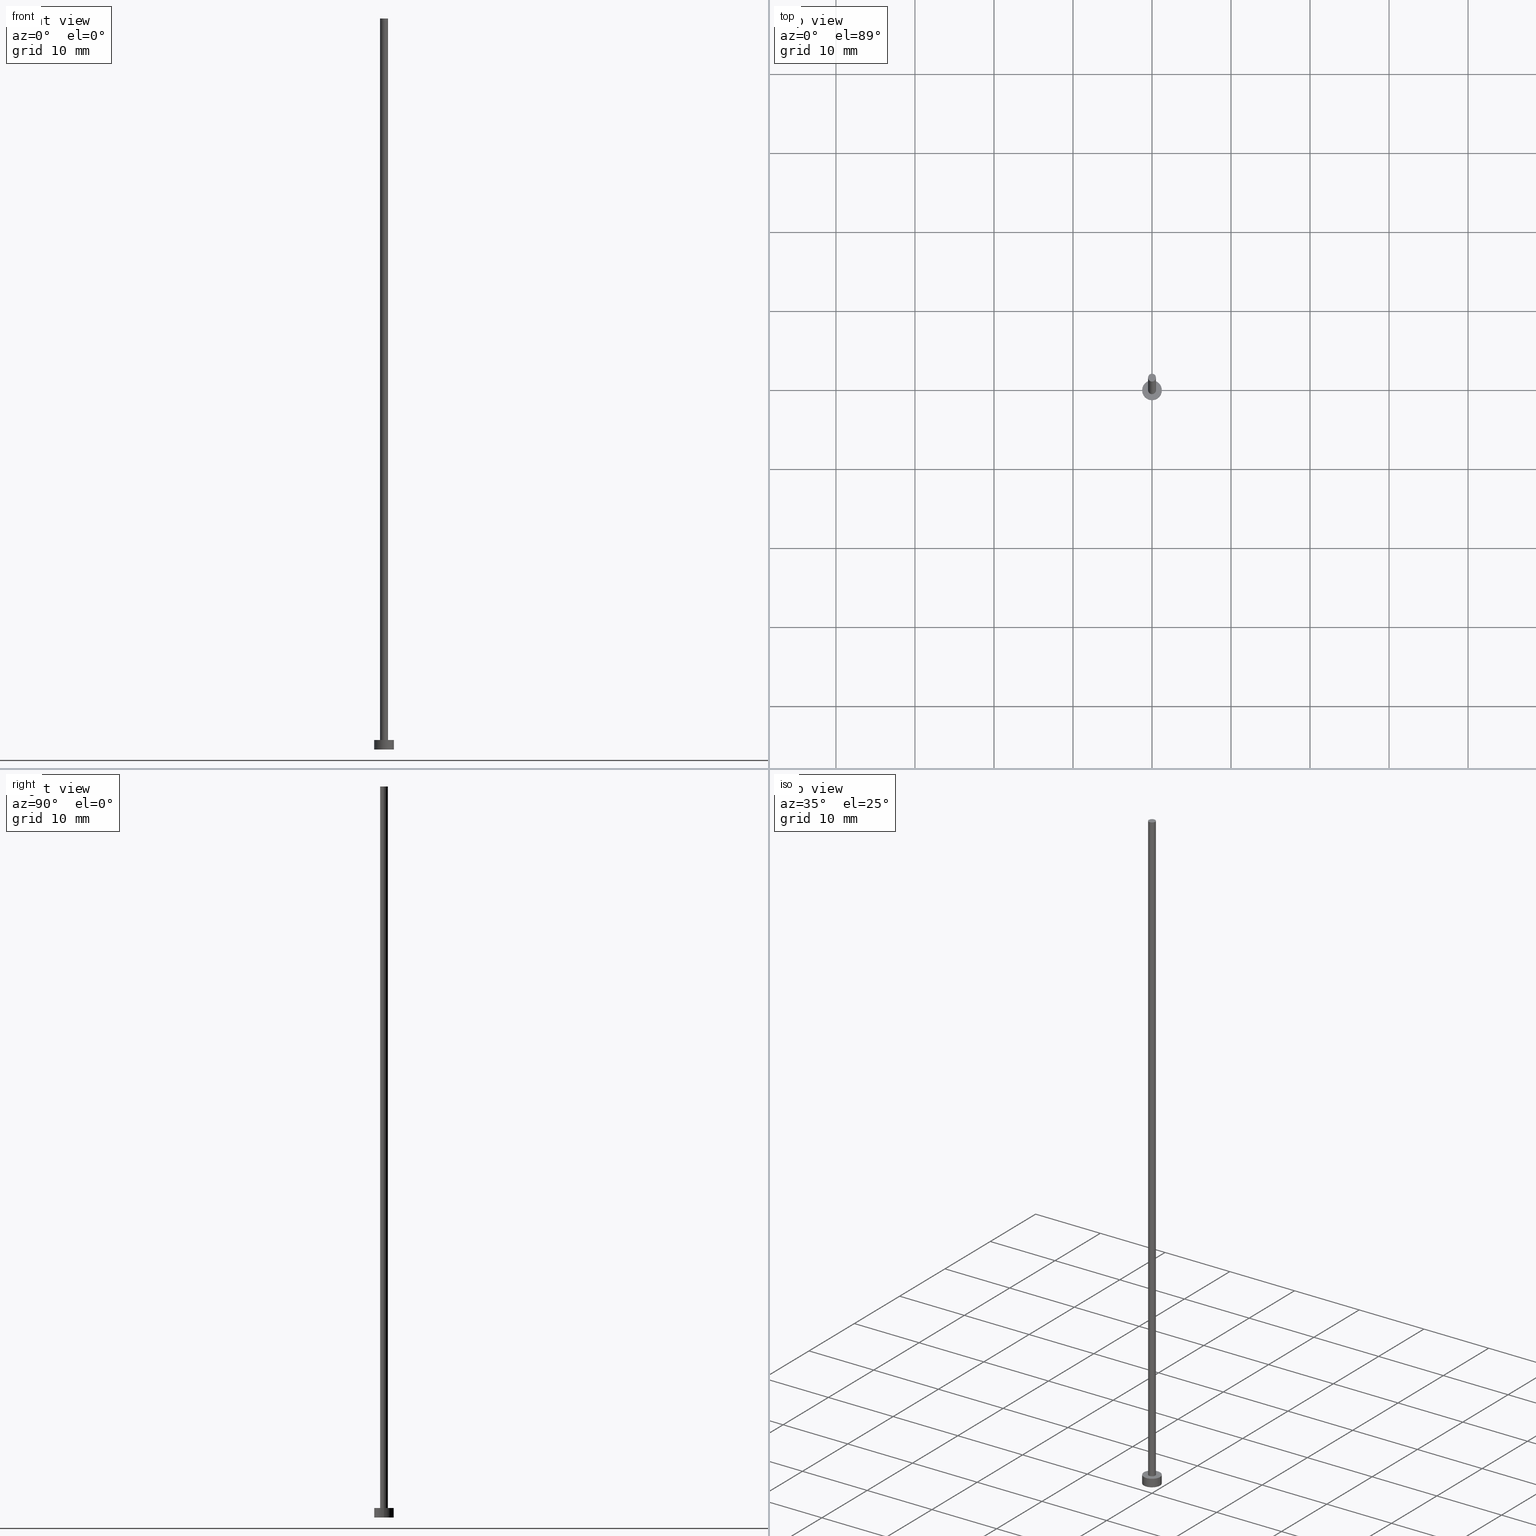
[diagram: canonical four-view strip — front | top / right | iso, engineering-drawing reading convention]
A machine part, canonical four-view strip (front | top / right | iso — engineering-drawing reading convention). The complete STEP part file that produces these views, byte-faithful:
ISO-10303-21;
HEADER;
FILE_DESCRIPTION (( 'STEP AP203' ),
    '1' );
FILE_NAME ('6671.STEP',
    '2023-04-20T06:09:05',
    ( '' ),
    ( '' ),
    'SwSTEP 2.0',
    'SolidWorks 2019',
    '' );
FILE_SCHEMA (( 'CONFIG_CONTROL_DESIGN' ));
ENDSEC;

DATA;
#1 = CIRCLE ( 'NONE', #239, 0.5000000000000000000 ) ;
#2 = DIRECTION ( 'NONE',  ( 0.000000000000000000, 0.000000000000000000, 1.000000000000000000 ) ) ;
#3 = DIRECTION ( 'NONE',  ( -0.000000000000000000, -0.000000000000000000, -1.000000000000000000 ) ) ;
#4 = EDGE_CURVE ( 'NONE', #56, #237, #158, .T. ) ;
#5 = CARTESIAN_POINT ( 'NONE',  ( 1.250000000000000000, 1.530808498934191571E-16, 1.199999999999999956 ) ) ;
#6 = PRODUCT_DEFINITION_FORMATION_WITH_SPECIFIED_SOURCE ( 'LIBOVOLN�', '', #194, .NOT_KNOWN. ) ;
#7 = DIRECTION ( 'NONE',  ( -1.000000000000000000, 0.000000000000000000, 0.000000000000000000 ) ) ;
#8 = DIRECTION ( 'NONE',  ( 0.000000000000000000, 0.000000000000000000, 1.000000000000000000 ) ) ;
#9 = PERSON_AND_ORGANIZATION_ROLE ( 'creator' ) ;
#10 = CIRCLE ( 'NONE', #236, 0.5000000000000000000 ) ;
#11 = CC_DESIGN_PERSON_AND_ORGANIZATION_ASSIGNMENT ( #93, #9, ( #46 ) ) ;
#12 = PERSON_AND_ORGANIZATION ( #65, #231 ) ;
#13 = PERSON_AND_ORGANIZATION_ROLE ( 'creator' ) ;
#14 = ADVANCED_FACE ( 'NONE', ( #25 ), #118, .T. ) ;
#15 = AXIS2_PLACEMENT_3D ( 'NONE', #54, #38, #218 ) ;
#16 = AXIS2_PLACEMENT_3D ( 'NONE', #186, #3, #42 ) ;
#17 = COORDINATED_UNIVERSAL_TIME_OFFSET ( 1, 0, .AHEAD. ) ;
#18 = ORIENTED_EDGE ( 'NONE', *, *, #50, .F. ) ;
#19 = FACE_OUTER_BOUND ( 'NONE', #137, .T. ) ;
#20 = AXIS2_PLACEMENT_3D ( 'NONE', #166, #163, #7 ) ;
#21 = APPROVAL ( #208, 'NEUR�EN�' ) ;
#22 = CC_DESIGN_SECURITY_CLASSIFICATION ( #132, ( #6 ) ) ;
#23 = ORIENTED_EDGE ( 'NONE', *, *, #144, .T. ) ;
#24 = ORIENTED_EDGE ( 'NONE', *, *, #140, .T. ) ;
#25 = FACE_OUTER_BOUND ( 'NONE', #253, .T. ) ;
#26 = DIRECTION ( 'NONE',  ( -1.000000000000000000, 0.000000000000000000, 0.000000000000000000 ) ) ;
#27 = CARTESIAN_POINT ( 'NONE',  ( 0.000000000000000000, 0.000000000000000000, 92.50000000000000000 ) ) ;
#28 = DIRECTION ( 'NONE',  ( 0.000000000000000000, 0.000000000000000000, 1.000000000000000000 ) ) ;
#29 = FACE_OUTER_BOUND ( 'NONE', #60, .T. ) ;
#30 = CARTESIAN_POINT ( 'NONE',  ( 0.000000000000000000, 0.000000000000000000, 1.199999999999999956 ) ) ;
#31 = APPROVAL_ROLE ( '' ) ;
#32 = COORDINATED_UNIVERSAL_TIME_OFFSET ( 1, 0, .AHEAD. ) ;
#33 = PERSON_AND_ORGANIZATION_ROLE ( 'design_supplier' ) ;
#34 = DIRECTION ( 'NONE',  ( 0.000000000000000000, 0.000000000000000000, 1.000000000000000000 ) ) ;
#35 = PERSON_AND_ORGANIZATION ( #65, #231 ) ;
#36 = LOCAL_TIME ( 8, 9, 5.000000000000000000, #32 ) ;
#37 = CIRCLE ( 'NONE', #159, 1.250000000000000000 ) ;
#38 = DIRECTION ( 'NONE',  ( 0.000000000000000000, 0.000000000000000000, 1.000000000000000000 ) ) ;
#39 = SHAPE_DEFINITION_REPRESENTATION ( #106, #111 ) ;
#40 = ORIENTED_EDGE ( 'NONE', *, *, #94, .F. ) ;
#41 = DIRECTION ( 'NONE',  ( 1.000000000000000000, 0.000000000000000000, 0.000000000000000000 ) ) ;
#42 = DIRECTION ( 'NONE',  ( -1.000000000000000000, 0.000000000000000000, 0.000000000000000000 ) ) ;
#43 = CARTESIAN_POINT ( 'NONE',  ( 0.000000000000000000, 0.000000000000000000, 1.199999999999999956 ) ) ;
#44 = DIRECTION ( 'NONE',  ( 0.000000000000000000, 0.000000000000000000, 1.000000000000000000 ) ) ;
#45 = DIRECTION ( 'NONE',  ( 0.000000000000000000, 0.000000000000000000, 1.000000000000000000 ) ) ;
#46 = PRODUCT_DEFINITION ( 'NEZN�M�', '', #6, #255 ) ;
#47 = CARTESIAN_POINT ( 'NONE',  ( 1.250000000000000000, 1.530808498934191571E-16, 1.199999999999999956 ) ) ;
#48 = APPROVAL_ROLE ( '' ) ;
#49 = DIRECTION ( 'NONE',  ( 1.000000000000000000, 0.000000000000000000, -0.000000000000000000 ) ) ;
#50 = EDGE_CURVE ( 'NONE', #99, #217, #1, .T. ) ;
#51 = DATE_AND_TIME ( #154, #214 ) ;
#52 = APPROVAL_STATUS ( 'not_yet_approved' ) ;
#53 = APPROVAL ( #229, 'NEUR�EN�' ) ;
#54 = CARTESIAN_POINT ( 'NONE',  ( 0.000000000000000000, 0.000000000000000000, 92.50000000000000000 ) ) ;
#55 = VERTEX_POINT ( 'NONE', #199 ) ;
#56 = VERTEX_POINT ( 'NONE', #136 ) ;
#57 = VECTOR ( 'NONE', #138, 1000.000000000000000 ) ;
#58 = APPROVAL_PERSON_ORGANIZATION ( #212, #53, #48 ) ;
#59 = DIRECTION ( 'NONE',  ( 0.000000000000000000, 0.000000000000000000, 1.000000000000000000 ) ) ;
#60 = EDGE_LOOP ( 'NONE', ( #40, #114 ) ) ;
#61 = PLANE ( 'NONE',  #184 ) ;
#62 = CARTESIAN_POINT ( 'NONE',  ( 0.5000000000000000000, 6.123233995736766036E-17, 1.199999999999999956 ) ) ;
#63 = ADVANCED_FACE ( 'NONE', ( #19 ), #96, .T. ) ;
#64 = DIRECTION ( 'NONE',  ( 1.000000000000000000, 0.000000000000000000, 0.000000000000000000 ) ) ;
#65 = PERSON ( 'NEUR�EN�', 'NEUR�EN�', 'NEUR�EN�', ('NEUR�EN�'), ('NEUR�EN�'), ('NEUR�EN�') ) ;
#66 = DIRECTION ( 'NONE',  ( 0.000000000000000000, 0.000000000000000000, 1.000000000000000000 ) ) ;
#67 = APPROVAL ( #52, 'NEUR�EN�' ) ;
#68 = DIRECTION ( 'NONE',  ( 0.000000000000000000, 0.000000000000000000, 1.000000000000000000 ) ) ;
#69 = CALENDAR_DATE ( 2023, 20, 4 ) ;
#70 = CALENDAR_DATE ( 2023, 20, 4 ) ;
#71 = DATE_TIME_ROLE ( 'classification_date' ) ;
#72 = VERTEX_POINT ( 'NONE', #125 ) ;
#73 = UNCERTAINTY_MEASURE_WITH_UNIT (LENGTH_MEASURE( 1.000000000000000082E-05 ), #190, 'distance_accuracy_value', 'NONE');
#74 = VECTOR ( 'NONE', #227, 1000.000000000000000 ) ;
#75 = MANIFOLD_SOLID_BREP ( 'P�idat vysunut�m3', #124 ) ;
#76 = ORIENTED_EDGE ( 'NONE', *, *, #140, .F. ) ;
#77 = EDGE_LOOP ( 'NONE', ( #198, #24 ) ) ;
#78 = ORIENTED_EDGE ( 'NONE', *, *, #144, .F. ) ;
#79 = CIRCLE ( 'NONE', #130, 1.250000000000000000 ) ;
#80 = LOCAL_TIME ( 8, 9, 5.000000000000000000, #17 ) ;
#81 = ORIENTED_EDGE ( 'NONE', *, *, #187, .F. ) ;
#82 = FACE_OUTER_BOUND ( 'NONE', #77, .T. ) ;
#83 = EDGE_CURVE ( 'NONE', #234, #237, #245, .T. ) ;
#84 = PLANE ( 'NONE',  #201 ) ;
#85 = AXIS2_PLACEMENT_3D ( 'NONE', #145, #66, #167 ) ;
#86 = DIRECTION ( 'NONE',  ( 0.000000000000000000, 0.000000000000000000, 1.000000000000000000 ) ) ;
#87 = DIRECTION ( 'NONE',  ( 1.000000000000000000, 0.000000000000000000, 0.000000000000000000 ) ) ;
#88 = CARTESIAN_POINT ( 'NONE',  ( 0.000000000000000000, 0.000000000000000000, 0.000000000000000000 ) ) ;
#89 = DIRECTION ( 'NONE',  ( 1.000000000000000000, 0.000000000000000000, 0.000000000000000000 ) ) ;
#90 =( NAMED_UNIT ( * ) PLANE_ANGLE_UNIT ( ) SI_UNIT ( $, .RADIAN. ) );
#91 = SECURITY_CLASSIFICATION_LEVEL ( 'unclassified' ) ;
#92 = AXIS2_PLACEMENT_3D ( 'NONE', #222, #8, #243 ) ;
#93 = PERSON_AND_ORGANIZATION ( #65, #231 ) ;
#94 = EDGE_CURVE ( 'NONE', #237, #234, #37, .T. ) ;
#95 = ORIENTED_EDGE ( 'NONE', *, *, #187, .T. ) ;
#96 = CYLINDRICAL_SURFACE ( 'NONE', #20, 0.5000000000000000000 ) ;
#97 = ORIENTED_EDGE ( 'NONE', *, *, #149, .T. ) ;
#98 = ORIENTED_EDGE ( 'NONE', *, *, #4, .T. ) ;
#99 = VERTEX_POINT ( 'NONE', #62 ) ;
#100 = CARTESIAN_POINT ( 'NONE',  ( 1.250000000000000000, 1.530808498934191571E-16, 0.000000000000000000 ) ) ;
#101 = DIRECTION ( 'NONE',  ( 1.000000000000000000, 0.000000000000000000, 0.000000000000000000 ) ) ;
#102 = LINE ( 'NONE', #5, #74 ) ;
#103 = FACE_OUTER_BOUND ( 'NONE', #215, .T. ) ;
#104 = VECTOR ( 'NONE', #205, 1000.000000000000000 ) ;
#105 = CARTESIAN_POINT ( 'NONE',  ( 0.5000000000000000000, 6.123233995736766036E-17, 92.50000000000000000 ) ) ;
#106 = PRODUCT_DEFINITION_SHAPE ( 'NONE', 'NONE',  #46 ) ;
#107 = CALENDAR_DATE ( 2023, 20, 4 ) ;
#108 = ADVANCED_FACE ( 'NONE', ( #103 ), #241, .T. ) ;
#109 = PERSON_AND_ORGANIZATION ( #65, #231 ) ;
#110 = DATE_AND_TIME ( #70, #226 ) ;
#111 = ADVANCED_BREP_SHAPE_REPRESENTATION ( '6671', ( #75, #246 ), #228 ) ;
#112 = PERSON_AND_ORGANIZATION_ROLE ( 'design_owner' ) ;
#113 = CIRCLE ( 'NONE', #192, 0.5000000000000000000 ) ;
#114 = ORIENTED_EDGE ( 'NONE', *, *, #83, .F. ) ;
#115 = EDGE_LOOP ( 'NONE', ( #160, #18 ) ) ;
#116 = ORIENTED_EDGE ( 'NONE', *, *, #149, .F. ) ;
#117 = APPLICATION_CONTEXT ( 'configuration controlled 3d designs of mechanical parts and assemblies' ) ;
#118 = PLANE ( 'NONE',  #15 ) ;
#119 = ORIENTED_EDGE ( 'NONE', *, *, #203, .T. ) ;
#120 = CC_DESIGN_APPROVAL ( #21, ( #132 ) ) ;
#121 = LINE ( 'NONE', #240, #147 ) ;
#122 = DIRECTION ( 'NONE',  ( 0.000000000000000000, 0.000000000000000000, 1.000000000000000000 ) ) ;
#123 = CYLINDRICAL_SURFACE ( 'NONE', #16, 1.250000000000000000 ) ;
#124 = CLOSED_SHELL ( 'NONE', ( #63, #157, #224, #248, #206, #108, #14 ) ) ;
#125 = CARTESIAN_POINT ( 'NONE',  ( 0.5000000000000000000, 6.123233995736766036E-17, 92.50000000000000000 ) ) ;
#126 = LOCAL_TIME ( 8, 9, 5.000000000000000000, #210 ) ;
#127 = PERSON_AND_ORGANIZATION ( #65, #231 ) ;
#128 = PERSON_AND_ORGANIZATION_ROLE ( 'classification_officer' ) ;
#129 = CC_DESIGN_PERSON_AND_ORGANIZATION_ASSIGNMENT ( #230, #13, ( #6 ) ) ;
#130 = AXIS2_PLACEMENT_3D ( 'NONE', #185, #45, #142 ) ;
#131 = PERSON_AND_ORGANIZATION ( #65, #231 ) ;
#132 = SECURITY_CLASSIFICATION ( '', '', #91 ) ;
#133 = APPLICATION_CONTEXT ( 'configuration controlled 3d designs of mechanical parts and assemblies' ) ;
#134 = AXIS2_PLACEMENT_3D ( 'NONE', #180, #68, #101 ) ;
#135 = APPROVAL_DATE_TIME ( #216, #21 ) ;
#136 = CARTESIAN_POINT ( 'NONE',  ( -1.250000000000000000, 0.000000000000000000, 1.199999999999999956 ) ) ;
#137 = EDGE_LOOP ( 'NONE', ( #116, #95, #139, #78 ) ) ;
#138 = DIRECTION ( 'NONE',  ( -0.000000000000000000, -0.000000000000000000, -1.000000000000000000 ) ) ;
#139 = ORIENTED_EDGE ( 'NONE', *, *, #50, .T. ) ;
#140 = EDGE_CURVE ( 'NONE', #162, #56, #79, .T. ) ;
#141 = CARTESIAN_POINT ( 'NONE',  ( -1.250000000000000000, 0.000000000000000000, 1.199999999999999956 ) ) ;
#142 = DIRECTION ( 'NONE',  ( 1.000000000000000000, 0.000000000000000000, 0.000000000000000000 ) ) ;
#143 = DIRECTION ( 'NONE',  ( -0.000000000000000000, -0.000000000000000000, -1.000000000000000000 ) ) ;
#144 = EDGE_CURVE ( 'NONE', #55, #217, #121, .T. ) ;
#145 = CARTESIAN_POINT ( 'NONE',  ( 0.000000000000000000, 0.000000000000000000, 92.50000000000000000 ) ) ;
#146 = DIRECTION ( 'NONE',  ( 1.000000000000000000, 0.000000000000000000, 0.000000000000000000 ) ) ;
#147 = VECTOR ( 'NONE', #207, 1000.000000000000000 ) ;
#148 = CARTESIAN_POINT ( 'NONE',  ( -1.250000000000000000, 0.000000000000000000, 0.000000000000000000 ) ) ;
#149 = EDGE_CURVE ( 'NONE', #72, #55, #165, .T. ) ;
#150 =( NAMED_UNIT ( * ) SI_UNIT ( $, .STERADIAN. ) SOLID_ANGLE_UNIT ( ) );
#151 = APPLICATION_PROTOCOL_DEFINITION ( 'international standard', 'config_control_design', 1994, #117 ) ;
#152 = CC_DESIGN_APPROVAL ( #53, ( #6 ) ) ;
#153 = CC_DESIGN_PERSON_AND_ORGANIZATION_ASSIGNMENT ( #131, #112, ( #194 ) ) ;
#154 = CALENDAR_DATE ( 2023, 20, 4 ) ;
#155 = APPROVAL_ROLE ( '' ) ;
#156 = CARTESIAN_POINT ( 'NONE',  ( 0.000000000000000000, 0.000000000000000000, 1.199999999999999956 ) ) ;
#157 = ADVANCED_FACE ( 'NONE', ( #202 ), #123, .T. ) ;
#158 = LINE ( 'NONE', #141, #57 ) ;
#159 = AXIS2_PLACEMENT_3D ( 'NONE', #223, #44, #146 ) ;
#160 = ORIENTED_EDGE ( 'NONE', *, *, #169, .F. ) ;
#161 = CC_DESIGN_DATE_AND_TIME_ASSIGNMENT ( #251, #71, ( #132 ) ) ;
#162 = VERTEX_POINT ( 'NONE', #47 ) ;
#163 = DIRECTION ( 'NONE',  ( -0.000000000000000000, -0.000000000000000000, -1.000000000000000000 ) ) ;
#164 = CARTESIAN_POINT ( 'NONE',  ( 0.000000000000000000, 0.000000000000000000, 1.199999999999999956 ) ) ;
#165 = CIRCLE ( 'NONE', #85, 0.5000000000000000000 ) ;
#166 = CARTESIAN_POINT ( 'NONE',  ( 0.000000000000000000, 0.000000000000000000, 92.50000000000000000 ) ) ;
#167 = DIRECTION ( 'NONE',  ( 1.000000000000000000, 0.000000000000000000, 0.000000000000000000 ) ) ;
#168 = LINE ( 'NONE', #105, #104 ) ;
#169 = EDGE_CURVE ( 'NONE', #217, #99, #10, .T. ) ;
#170 = AXIS2_PLACEMENT_3D ( 'NONE', #164, #143, #26 ) ;
#171 = APPROVAL_DATE_TIME ( #110, #67 ) ;
#172 = COORDINATED_UNIVERSAL_TIME_OFFSET ( 1, 0, .AHEAD. ) ;
#173 = CALENDAR_DATE ( 2023, 20, 4 ) ;
#174 = ORIENTED_EDGE ( 'NONE', *, *, #83, .T. ) ;
#175 = ORIENTED_EDGE ( 'NONE', *, *, #220, .T. ) ;
#176 = CC_DESIGN_DATE_AND_TIME_ASSIGNMENT ( #188, #209, ( #46 ) ) ;
#177 = EDGE_LOOP ( 'NONE', ( #195, #254, #98, #252 ) ) ;
#178 = APPROVAL_PERSON_ORGANIZATION ( #127, #21, #31 ) ;
#179 = CARTESIAN_POINT ( 'NONE',  ( -0.5000000000000000000, 0.000000000000000000, 1.199999999999999956 ) ) ;
#180 = CARTESIAN_POINT ( 'NONE',  ( 0.000000000000000000, 0.000000000000000000, 0.000000000000000000 ) ) ;
#181 = EDGE_CURVE ( 'NONE', #56, #162, #250, .T. ) ;
#182 = DIRECTION ( 'NONE',  ( -1.000000000000000000, 0.000000000000000000, 0.000000000000000000 ) ) ;
#183 = AXIS2_PLACEMENT_3D ( 'NONE', #238, #225, #182 ) ;
#184 = AXIS2_PLACEMENT_3D ( 'NONE', #43, #122, #49 ) ;
#185 = CARTESIAN_POINT ( 'NONE',  ( 0.000000000000000000, 0.000000000000000000, 1.199999999999999956 ) ) ;
#186 = CARTESIAN_POINT ( 'NONE',  ( 0.000000000000000000, 0.000000000000000000, 1.199999999999999956 ) ) ;
#187 = EDGE_CURVE ( 'NONE', #72, #99, #168, .T. ) ;
#188 = DATE_AND_TIME ( #69, #126 ) ;
#189 = COORDINATED_UNIVERSAL_TIME_OFFSET ( 1, 0, .AHEAD. ) ;
#190 =( LENGTH_UNIT ( ) NAMED_UNIT ( * ) SI_UNIT ( .MILLI., .METRE. ) );
#191 = APPLICATION_PROTOCOL_DEFINITION ( 'international standard', 'config_control_design', 1994, #133 ) ;
#192 = AXIS2_PLACEMENT_3D ( 'NONE', #27, #2, #87 ) ;
#193 = APPROVAL_PERSON_ORGANIZATION ( #109, #67, #155 ) ;
#194 = PRODUCT ( '6671', '6671', '', ( #249 ) ) ;
#195 = ORIENTED_EDGE ( 'NONE', *, *, #203, .F. ) ;
#196 = EDGE_LOOP ( 'NONE', ( #76, #119, #174, #233 ) ) ;
#197 = CC_DESIGN_PERSON_AND_ORGANIZATION_ASSIGNMENT ( #12, #128, ( #132 ) ) ;
#198 = ORIENTED_EDGE ( 'NONE', *, *, #181, .T. ) ;
#199 = CARTESIAN_POINT ( 'NONE',  ( -0.5000000000000000000, 0.000000000000000000, 92.50000000000000000 ) ) ;
#200 = DIRECTION ( 'NONE',  ( 1.000000000000000000, 0.000000000000000000, -0.000000000000000000 ) ) ;
#201 = AXIS2_PLACEMENT_3D ( 'NONE', #88, #86, #200 ) ;
#202 = FACE_OUTER_BOUND ( 'NONE', #196, .T. ) ;
#203 = EDGE_CURVE ( 'NONE', #162, #234, #102, .T. ) ;
#204 = FACE_BOUND ( 'NONE', #115, .T. ) ;
#205 = DIRECTION ( 'NONE',  ( -0.000000000000000000, -0.000000000000000000, -1.000000000000000000 ) ) ;
#206 = ADVANCED_FACE ( 'NONE', ( #29 ), #84, .F. ) ;
#207 = DIRECTION ( 'NONE',  ( -0.000000000000000000, -0.000000000000000000, -1.000000000000000000 ) ) ;
#208 = APPROVAL_STATUS ( 'not_yet_approved' ) ;
#209 = DATE_TIME_ROLE ( 'creation_date' ) ;
#210 = COORDINATED_UNIVERSAL_TIME_OFFSET ( 1, 0, .AHEAD. ) ;
#211 = APPROVAL_DATE_TIME ( #51, #53 ) ;
#212 = PERSON_AND_ORGANIZATION ( #65, #231 ) ;
#213 = PRODUCT_RELATED_PRODUCT_CATEGORY ( 'detail', '', ( #194 ) ) ;
#214 = LOCAL_TIME ( 8, 9, 5.000000000000000000, #189 ) ;
#215 = EDGE_LOOP ( 'NONE', ( #81, #232, #23, #235 ) ) ;
#216 = DATE_AND_TIME ( #107, #36 ) ;
#217 = VERTEX_POINT ( 'NONE', #179 ) ;
#218 = DIRECTION ( 'NONE',  ( 1.000000000000000000, 0.000000000000000000, -0.000000000000000000 ) ) ;
#219 = CYLINDRICAL_SURFACE ( 'NONE', #170, 1.250000000000000000 ) ;
#220 = EDGE_CURVE ( 'NONE', #55, #72, #113, .T. ) ;
#221 = CC_DESIGN_APPROVAL ( #67, ( #46 ) ) ;
#222 = CARTESIAN_POINT ( 'NONE',  ( 0.000000000000000000, 0.000000000000000000, 1.199999999999999956 ) ) ;
#223 = CARTESIAN_POINT ( 'NONE',  ( 0.000000000000000000, 0.000000000000000000, 0.000000000000000000 ) ) ;
#224 = ADVANCED_FACE ( 'NONE', ( #244 ), #219, .T. ) ;
#225 = DIRECTION ( 'NONE',  ( -0.000000000000000000, -0.000000000000000000, -1.000000000000000000 ) ) ;
#226 = LOCAL_TIME ( 8, 9, 5.000000000000000000, #172 ) ;
#227 = DIRECTION ( 'NONE',  ( -0.000000000000000000, -0.000000000000000000, -1.000000000000000000 ) ) ;
#228 =( GEOMETRIC_REPRESENTATION_CONTEXT ( 3 ) GLOBAL_UNCERTAINTY_ASSIGNED_CONTEXT ( ( #73 ) ) GLOBAL_UNIT_ASSIGNED_CONTEXT ( ( #190, #90, #150 ) ) REPRESENTATION_CONTEXT ( 'NONE', 'WORKASPACE' ) );
#229 = APPROVAL_STATUS ( 'not_yet_approved' ) ;
#230 = PERSON_AND_ORGANIZATION ( #65, #231 ) ;
#231 = ORGANIZATION ( 'NEUR�EN�', 'NEUR�EN�', '' ) ;
#232 = ORIENTED_EDGE ( 'NONE', *, *, #220, .F. ) ;
#233 = ORIENTED_EDGE ( 'NONE', *, *, #4, .F. ) ;
#234 = VERTEX_POINT ( 'NONE', #100 ) ;
#235 = ORIENTED_EDGE ( 'NONE', *, *, #169, .T. ) ;
#236 = AXIS2_PLACEMENT_3D ( 'NONE', #30, #28, #64 ) ;
#237 = VERTEX_POINT ( 'NONE', #148 ) ;
#238 = CARTESIAN_POINT ( 'NONE',  ( 0.000000000000000000, 0.000000000000000000, 92.50000000000000000 ) ) ;
#239 = AXIS2_PLACEMENT_3D ( 'NONE', #156, #59, #41 ) ;
#240 = CARTESIAN_POINT ( 'NONE',  ( -0.5000000000000000000, 0.000000000000000000, 92.50000000000000000 ) ) ;
#241 = CYLINDRICAL_SURFACE ( 'NONE', #183, 0.5000000000000000000 ) ;
#242 = CC_DESIGN_PERSON_AND_ORGANIZATION_ASSIGNMENT ( #35, #33, ( #6 ) ) ;
#243 = DIRECTION ( 'NONE',  ( 1.000000000000000000, 0.000000000000000000, 0.000000000000000000 ) ) ;
#244 = FACE_OUTER_BOUND ( 'NONE', #177, .T. ) ;
#245 = CIRCLE ( 'NONE', #134, 1.250000000000000000 ) ;
#246 = AXIS2_PLACEMENT_3D ( 'NONE', #247, #34, #89 ) ;
#247 = CARTESIAN_POINT ( 'NONE',  ( 0.000000000000000000, 0.000000000000000000, 0.000000000000000000 ) ) ;
#248 = ADVANCED_FACE ( 'NONE', ( #204, #82 ), #61, .T. ) ;
#249 = MECHANICAL_CONTEXT ( 'NONE', #117, 'mechanical' ) ;
#250 = CIRCLE ( 'NONE', #92, 1.250000000000000000 ) ;
#251 = DATE_AND_TIME ( #173, #80 ) ;
#252 = ORIENTED_EDGE ( 'NONE', *, *, #94, .T. ) ;
#253 = EDGE_LOOP ( 'NONE', ( #175, #97 ) ) ;
#254 = ORIENTED_EDGE ( 'NONE', *, *, #181, .F. ) ;
#255 = DESIGN_CONTEXT ( 'detailed design', #133, 'design' ) ;
ENDSEC;
END-ISO-10303-21;
